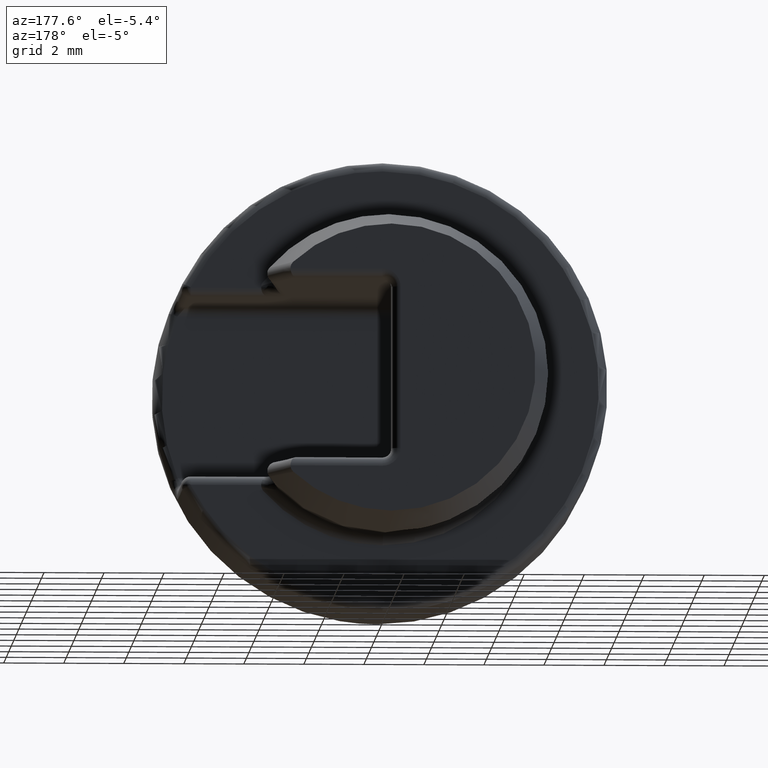
[diagram: clean part render]
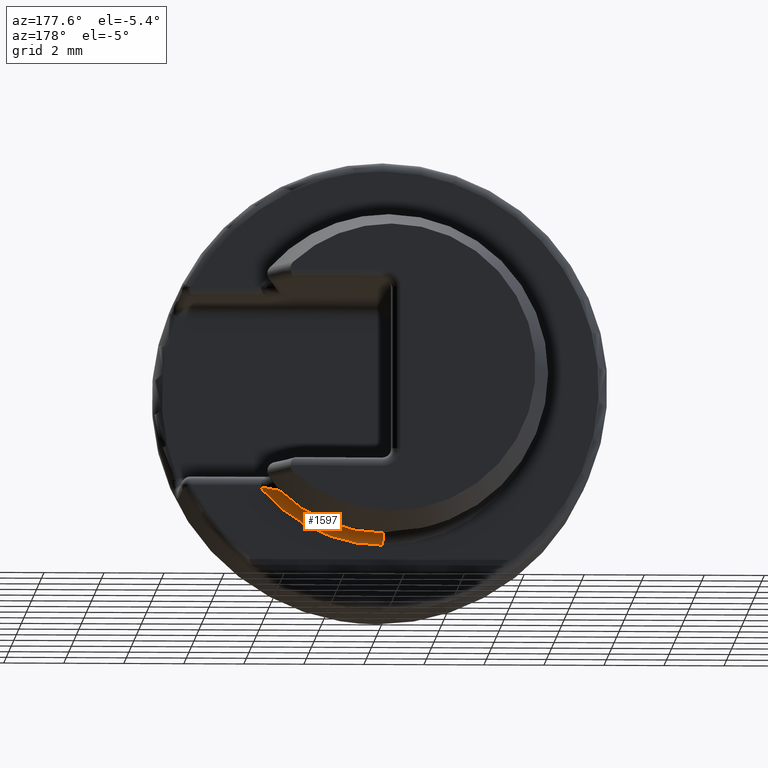
[diagram: same view with one face highlighted and labeled with its STEP entity id]
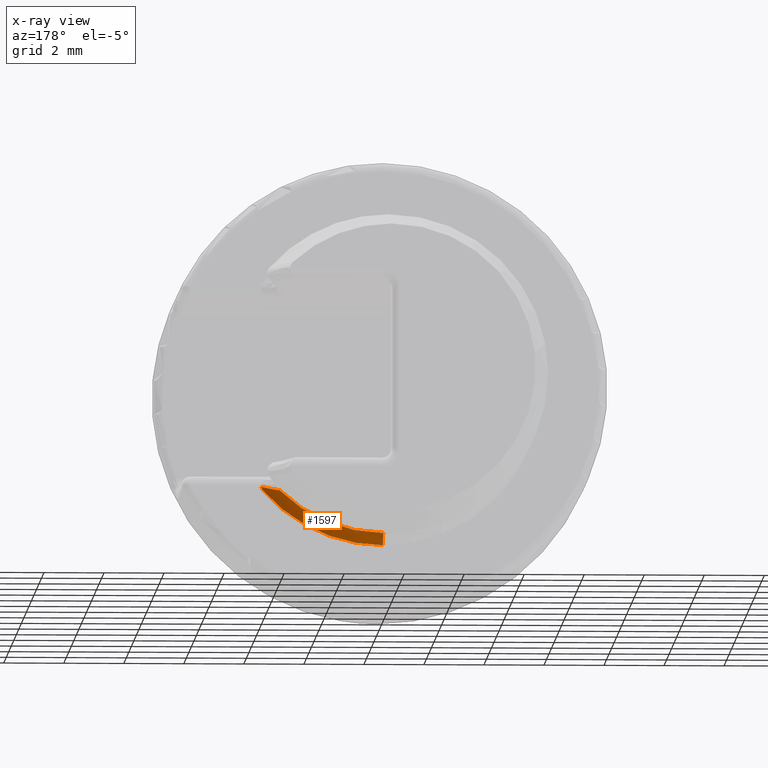
[diagram: x-ray of the same camera — body ghosted, the highlighted face saturated]
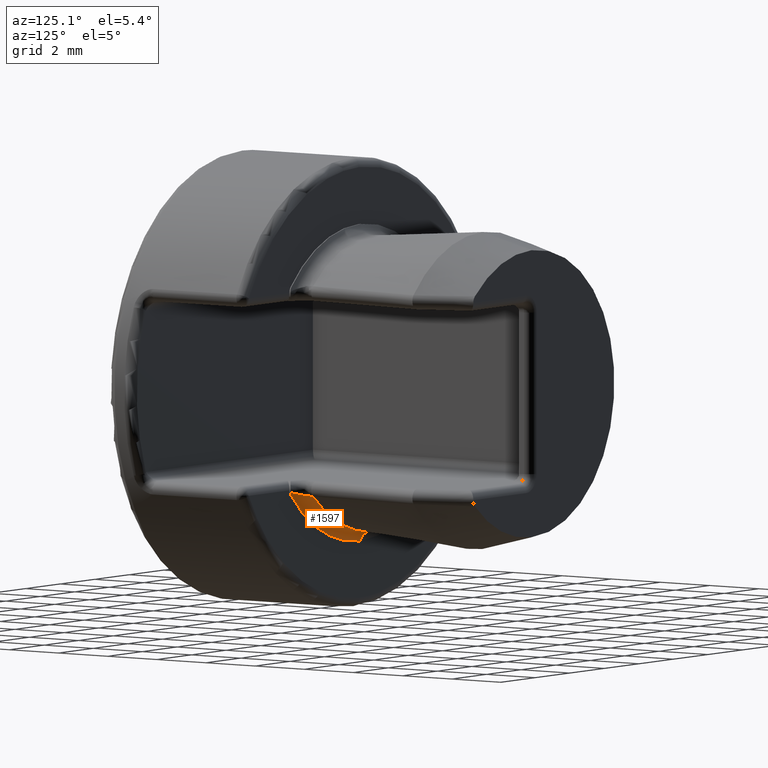
[diagram: same view with one face highlighted and labeled with its STEP entity id]
A machine part, auxiliary view. The second image highlights one B-rep face of the part: STEP entity #1597.
The next image is the same camera in x-ray: the body ghosted, the highlighted face saturated — about 0% of this face is hidden behind the body in this view.
A second angle (auxiliary view) of the same face is appended — the face is thin or edge-on in the first view.
In plain terms, the highlighted toroidal blend (fillet) surface has major radius 5.4403 mm and minor (blend) radius 0.5 mm.
Its self-contained STEP definition (entity closure, byte-faithful):
#1254 = DIRECTION ( 'NONE',  ( 0.0000000000000000000, 0.0000000000000000000, 1.000000000000000000 ) ) ;
#1255 = DIRECTION ( 'NONE',  ( 0.0000000000000000000, 1.000000000000000000, 0.0000000000000000000 ) ) ;
#1256 = CARTESIAN_POINT ( 'NONE',  ( 0.0000000000000000000, 5.552489933847937200, 0.0000000000000000000 ) ) ;
#1257 = AXIS2_PLACEMENT_3D ( 'NONE', #1256, #1255, #1254 ) ;
#1258 = CIRCLE ( 'NONE', #1257, 4.941876015479351700 ) ;
#1340 = VERTEX_POINT ( 'NONE', #2022 ) ;
#1354 = VERTEX_POINT ( 'NONE', #2256 ) ;
#1356 = EDGE_CURVE ( 'NONE', #1354, #1357, #2254, .T. ) ;
#1357 = VERTEX_POINT ( 'NONE', #2220 ) ;
#1420 = ORIENTED_EDGE ( 'NONE', *, *, #1421, .F. ) ;
#1421 = EDGE_CURVE ( 'NONE', #1357, #1526, #2672, .T. ) ;
#1444 = EDGE_CURVE ( 'NONE', #1340, #1354, #1258, .T. ) ;
#1525 = EDGE_CURVE ( 'NONE', #1526, #1582, #2996, .T. ) ;
#1526 = VERTEX_POINT ( 'NONE', #2953 ) ;
#1532 = ORIENTED_EDGE ( 'NONE', *, *, #1537, .F. ) ;
#1537 = EDGE_CURVE ( 'NONE', #1574, #1340, #3024, .T. ) ;
#1543 = EDGE_CURVE ( 'NONE', #1582, #1574, #2957, .T. ) ;
#1544 = ORIENTED_EDGE ( 'NONE', *, *, #1356, .F. ) ;
#1574 = VERTEX_POINT ( 'NONE', #3126 ) ;
#1581 = ORIENTED_EDGE ( 'NONE', *, *, #1525, .F. ) ;
#1582 = VERTEX_POINT ( 'NONE', #3152 ) ;
#1583 = ORIENTED_EDGE ( 'NONE', *, *, #1444, .F. ) ;
#1594 = EDGE_LOOP ( 'NONE', ( #1544, #1583, #1532, #1638, #1581, #1420 ) ) ;
#1597 = ADVANCED_FACE ( 'NONE', ( #3187 ), #3266, .F. ) ;
#1638 = ORIENTED_EDGE ( 'NONE', *, *, #1543, .F. ) ;
#2022 = CARTESIAN_POINT ( 'NONE',  ( 3.476230303736610700, 5.552489933848400000, -3.512543441404111900 ) ) ;
#2220 = CARTESIAN_POINT ( 'NONE',  ( 0.0000000000000000000, 5.032435404068169600, -5.300000000000000700 ) ) ;
#2250 = DIRECTION ( 'NONE',  ( 0.0000000000000000000, 0.0000000000000000000, -1.000000000000000000 ) ) ;
#2251 = DIRECTION ( 'NONE',  ( 1.000000000000000000, 0.0000000000000000000, 0.0000000000000000000 ) ) ;
#2252 = CARTESIAN_POINT ( 'NONE',  ( 0.0000000000000000000, 5.512358648735468800, -5.440262893270912100 ) ) ;
#2253 = AXIS2_PLACEMENT_3D ( 'NONE', #2252, #2251, #2250 ) ;
#2254 = CIRCLE ( 'NONE', #2253, 0.5000000000000004400 ) ;
#2256 = CARTESIAN_POINT ( 'NONE',  ( 6.051852768358426600E-016, 5.552489933847937200, -4.941876015479351700 ) ) ;
#2668 = DIRECTION ( 'NONE',  ( 0.0000000000000000000, 0.0000000000000000000, -1.000000000000000000 ) ) ;
#2669 = DIRECTION ( 'NONE',  ( 0.0000000000000000000, -1.000000000000000000, 0.0000000000000000000 ) ) ;
#2670 = CARTESIAN_POINT ( 'NONE',  ( 0.0000000000000000000, 5.032435404068169600, 0.0000000000000000000 ) ) ;
#2671 = AXIS2_PLACEMENT_3D ( 'NONE', #2670, #2669, #2668 ) ;
#2672 = CIRCLE ( 'NONE', #2671, 5.300000000000000700 ) ;
#2953 = CARTESIAN_POINT ( 'NONE',  ( 3.981707673850505700, 5.032435404068542600, -3.498000000000000200 ) ) ;
#2957 = B_SPLINE_CURVE_WITH_KNOTS ( 'NONE', 3,
 ( #3020, #3019, #3018, #2971, #2970, #2969, #2968, #2967, #2966, #2965 ),
 .UNSPECIFIED., .F., .F.,
 ( 4, 2, 2, 2, 4 ),
 ( 0.0000000000000000000, 0.2499998835179985100, 0.4999997670359983500, 0.7499996505539982000, 0.9999995340719980400 ),
 .UNSPECIFIED. ) ;
#2965 = CARTESIAN_POINT ( 'NONE',  ( 3.473138056322081300, 5.512358610552415600, -3.513367245193235200 ) ) ;
#2966 = CARTESIAN_POINT ( 'NONE',  ( 3.473358200777474800, 5.454464830042308400, -3.513327073124314500 ) ) ;
#2967 = CARTESIAN_POINT ( 'NONE',  ( 3.493196147953296500, 5.397221862822434000, -3.508176970595220400 ) ) ;
#2968 = CARTESIAN_POINT ( 'NONE',  ( 3.562232365661777600, 5.294246995351389100, -3.490302056161742200 ) ) ;
#2969 = CARTESIAN_POINT ( 'NONE',  ( 3.610508605561693100, 5.248164425320222600, -3.477821801467631000 ) ) ;
#2970 = CARTESIAN_POINT ( 'NONE',  ( 3.720284856604531700, 5.169155148970346200, -3.449621639111824000 ) ) ;
#2971 = CARTESIAN_POINT ( 'NONE',  ( 3.782688783581588300, 5.135515950210536800, -3.433672601425164000 ) ) ;
#2978 = CARTESIAN_POINT ( 'NONE',  ( 3.474137913594513600, 5.539132290733444800, -3.513100930060616200 ) ) ;
#2979 = CARTESIAN_POINT ( 'NONE',  ( 3.473129471191449100, 5.525732618254108900, -3.513376771707689400 ) ) ;
#2980 = CARTESIAN_POINT ( 'NONE',  ( 3.473138056322081300, 5.512358610552415600, -3.513367245193235200 ) ) ;
#2992 = CARTESIAN_POINT ( 'NONE',  ( 3.476230303736610700, 5.552489933848400000, -3.512543441404111900 ) ) ;
#2996 = B_SPLINE_CURVE_WITH_KNOTS ( 'NONE', 3,
 ( #2997, #3017, #3016, #2998 ),
 .UNSPECIFIED., .F., .F.,
 ( 4, 4 ),
 ( 1.794935908809483200E-017, 0.0001483026085999868200 ),
 .UNSPECIFIED. ) ;
#2997 = CARTESIAN_POINT ( 'NONE',  ( 3.981707673850505700, 5.032435404068542600, -3.498000000000000200 ) ) ;
#2998 = CARTESIAN_POINT ( 'NONE',  ( 4.048767043291484800, 5.043780643235347600, -3.366927764978413500 ) ) ;
#3016 = CARTESIAN_POINT ( 'NONE',  ( 4.037735247983229100, 5.035464025079281900, -3.415131420673454000 ) ) ;
#3017 = CARTESIAN_POINT ( 'NONE',  ( 4.014797325370032900, 5.032435404068915700, -3.460334671417855600 ) ) ;
#3018 = CARTESIAN_POINT ( 'NONE',  ( 3.911814160916275500, 5.080971489078000200, -3.401007972420380600 ) ) ;
#3019 = CARTESIAN_POINT ( 'NONE',  ( 3.979126998214324900, 5.059603307912192700, -3.384137564467721800 ) ) ;
#3020 = CARTESIAN_POINT ( 'NONE',  ( 4.048767043291484800, 5.043780643235347600, -3.366927764978413500 ) ) ;
#3024 = B_SPLINE_CURVE_WITH_KNOTS ( 'NONE', 3,
 ( #2980, #2979, #2978, #2992 ),
 .UNSPECIFIED., .F., .F.,
 ( 4, 4 ),
 ( 0.0000000000000000000, 1.000000000000000000 ),
 .UNSPECIFIED. ) ;
#3126 = CARTESIAN_POINT ( 'NONE',  ( 3.473138056322081300, 5.512358610552415600, -3.513367245193235200 ) ) ;
#3152 = CARTESIAN_POINT ( 'NONE',  ( 4.048767043291484800, 5.043780643235347600, -3.366927764978413500 ) ) ;
#3187 = FACE_OUTER_BOUND ( 'NONE', #1594, .T. ) ;
#3232 = DIRECTION ( 'NONE',  ( 0.0000000000000000000, 0.0000000000000000000, -1.000000000000000000 ) ) ;
#3233 = DIRECTION ( 'NONE',  ( 0.0000000000000000000, -1.000000000000000000, 0.0000000000000000000 ) ) ;
#3234 = CARTESIAN_POINT ( 'NONE',  ( 0.0000000000000000000, 5.512358648735468800, 0.0000000000000000000 ) ) ;
#3260 = AXIS2_PLACEMENT_3D ( 'NONE', #3234, #3233, #3232 ) ;
#3266 = TOROIDAL_SURFACE ( 'NONE', #3260, 5.440262893270912100, 0.5000000000000000000 ) ;